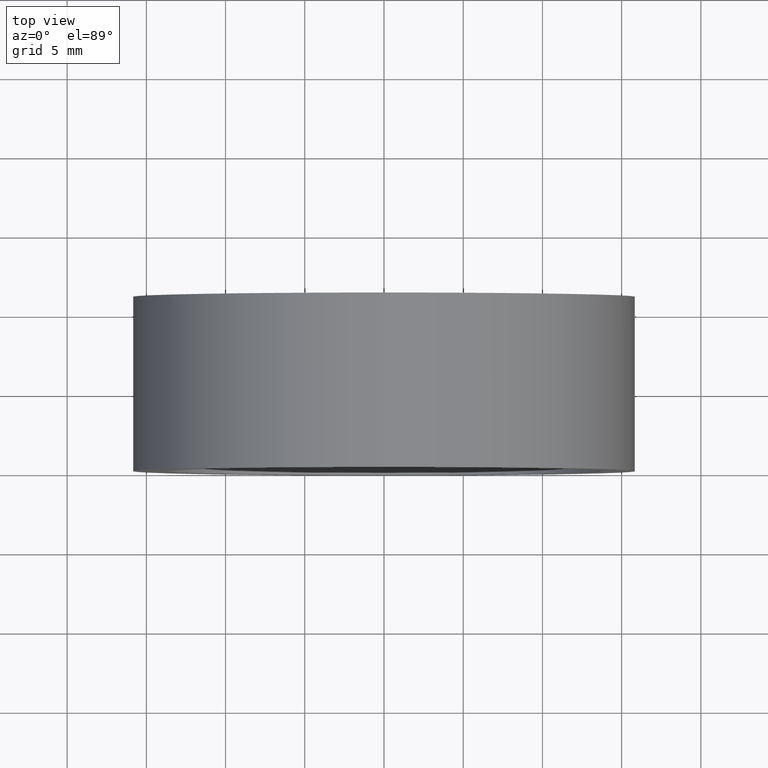
[diagram: clean part render]
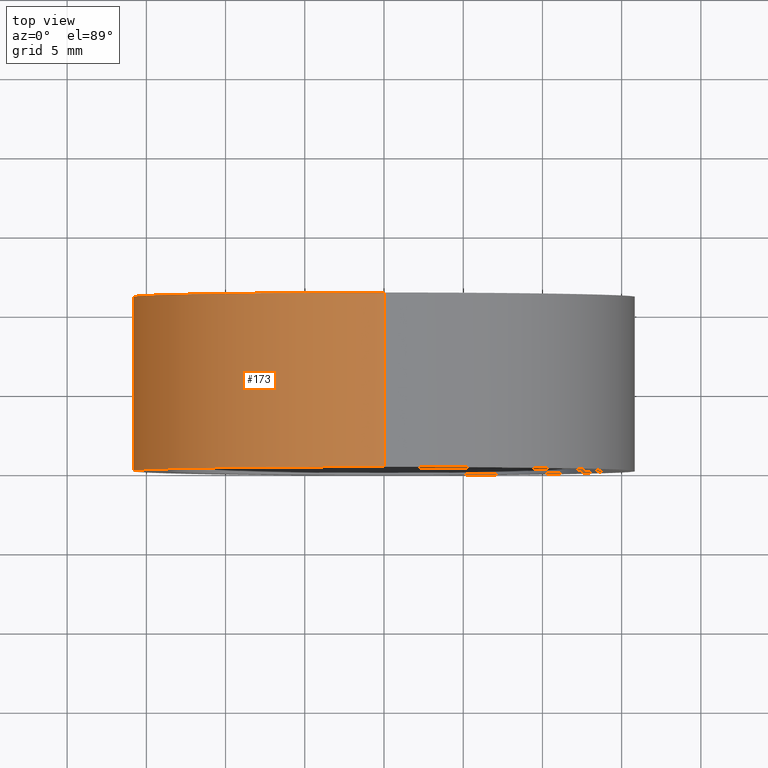
[diagram: same view with one face highlighted and labeled with its STEP entity id]
A machine part, top view. The second image highlights one B-rep face of the part: STEP entity #173.
In plain terms, the highlighted cylindrical surface (partial cylindrical patch) has radius 15.875 mm, axis along (-0, -1, -0).
Its self-contained STEP definition (entity closure, byte-faithful):
#1 = CARTESIAN_POINT ( 'NONE',  ( 1.944126793646423200E-015, 0.0000000000000000000, 15.87500000000000000 ) ) ;
#5 = VERTEX_POINT ( 'NONE', #11 ) ;
#11 = CARTESIAN_POINT ( 'NONE',  ( 0.0000000000000000000, 0.0000000000000000000, -15.87500000000000000 ) ) ;
#12 = EDGE_CURVE ( 'NONE', #50, #133, #127, .T. ) ;
#14 = LINE ( 'NONE', #232, #212 ) ;
#18 = FACE_OUTER_BOUND ( 'NONE', #42, .T. ) ;
#19 = DIRECTION ( 'NONE',  ( -0.0000000000000000000, -1.000000000000000000, -0.0000000000000000000 ) ) ;
#20 = CARTESIAN_POINT ( 'NONE',  ( 0.0000000000000000000, 11.00000000000000000, -15.87500000000000000 ) ) ;
#32 = CARTESIAN_POINT ( 'NONE',  ( 0.0000000000000000000, 11.00000000000000000, 0.0000000000000000000 ) ) ;
#33 = CIRCLE ( 'NONE', #120, 15.87500000000000000 ) ;
#38 = DIRECTION ( 'NONE',  ( 0.0000000000000000000, 0.0000000000000000000, 1.000000000000000000 ) ) ;
#40 = DIRECTION ( 'NONE',  ( 0.0000000000000000000, 1.000000000000000000, 0.0000000000000000000 ) ) ;
#42 = EDGE_LOOP ( 'NONE', ( #240, #180, #228, #129 ) ) ;
#50 = VERTEX_POINT ( 'NONE', #20 ) ;
#52 = DIRECTION ( 'NONE',  ( 0.0000000000000000000, 0.0000000000000000000, 1.000000000000000000 ) ) ;
#62 = AXIS2_PLACEMENT_3D ( 'NONE', #235, #191, #237 ) ;
#78 = DIRECTION ( 'NONE',  ( -0.0000000000000000000, -1.000000000000000000, -0.0000000000000000000 ) ) ;
#84 = CARTESIAN_POINT ( 'NONE',  ( 1.944126793646423200E-015, 11.00000000000000000, 15.87500000000000000 ) ) ;
#97 = AXIS2_PLACEMENT_3D ( 'NONE', #32, #150, #38 ) ;
#120 = AXIS2_PLACEMENT_3D ( 'NONE', #171, #40, #52 ) ;
#127 = CIRCLE ( 'NONE', #97, 15.87500000000000000 ) ;
#129 = ORIENTED_EDGE ( 'NONE', *, *, #158, .T. ) ;
#130 = EDGE_CURVE ( 'NONE', #50, #5, #14, .T. ) ;
#133 = VERTEX_POINT ( 'NONE', #140 ) ;
#140 = CARTESIAN_POINT ( 'NONE',  ( 1.944126793646423200E-015, 11.00000000000000000, 15.87500000000000000 ) ) ;
#145 = EDGE_CURVE ( 'NONE', #133, #186, #204, .T. ) ;
#150 = DIRECTION ( 'NONE',  ( 0.0000000000000000000, 1.000000000000000000, 0.0000000000000000000 ) ) ;
#158 = EDGE_CURVE ( 'NONE', #5, #186, #33, .T. ) ;
#171 = CARTESIAN_POINT ( 'NONE',  ( 0.0000000000000000000, 0.0000000000000000000, 0.0000000000000000000 ) ) ;
#173 = ADVANCED_FACE ( 'NONE', ( #18 ), #223, .T. ) ;
#180 = ORIENTED_EDGE ( 'NONE', *, *, #12, .F. ) ;
#186 = VERTEX_POINT ( 'NONE', #1 ) ;
#191 = DIRECTION ( 'NONE',  ( -0.0000000000000000000, -1.000000000000000000, -0.0000000000000000000 ) ) ;
#204 = LINE ( 'NONE', #84, #217 ) ;
#212 = VECTOR ( 'NONE', #19, 1000.000000000000000 ) ;
#217 = VECTOR ( 'NONE', #78, 1000.000000000000000 ) ;
#223 = CYLINDRICAL_SURFACE ( 'NONE', #62, 15.87500000000000000 ) ;
#228 = ORIENTED_EDGE ( 'NONE', *, *, #130, .T. ) ;
#232 = CARTESIAN_POINT ( 'NONE',  ( 0.0000000000000000000, 11.00000000000000000, -15.87500000000000000 ) ) ;
#235 = CARTESIAN_POINT ( 'NONE',  ( 0.0000000000000000000, 11.00000000000000000, 0.0000000000000000000 ) ) ;
#237 = DIRECTION ( 'NONE',  ( 0.0000000000000000000, 0.0000000000000000000, -1.000000000000000000 ) ) ;
#240 = ORIENTED_EDGE ( 'NONE', *, *, #145, .F. ) ;